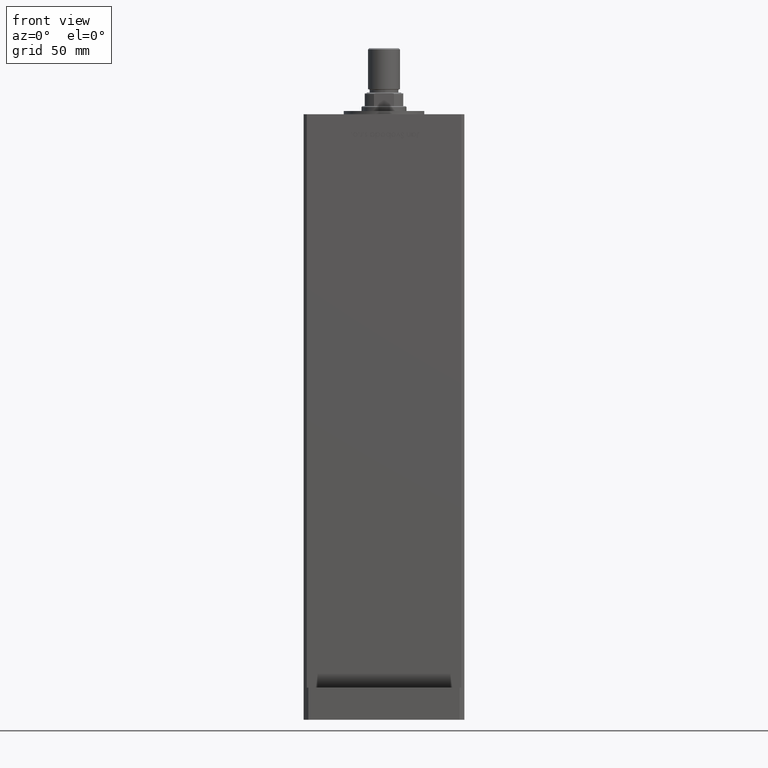
[diagram: clean part render]
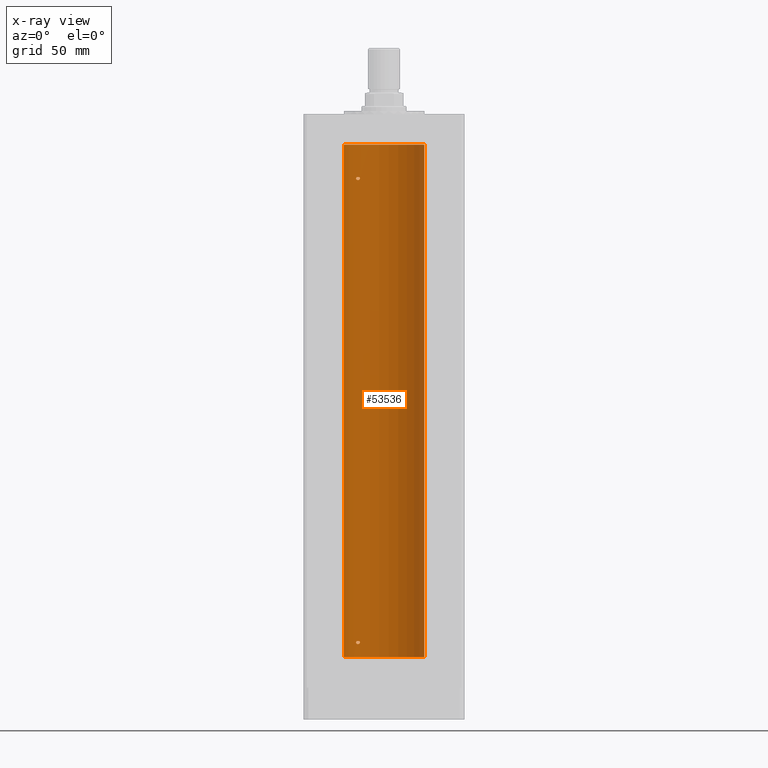
[diagram: x-ray — body ghosted, one internal face saturated and labeled with its STEP entity id]
A machine part, front view, then the same camera in x-ray: the body is ghosted and one INTERNAL B-rep face — a face not visible from any outside direction — is saturated and labeled: STEP entity #53536.
In plain terms, the highlighted cylindrical surface (partial cylindrical patch) has radius 25 mm, axis along (-0, -0, -1).
Its self-contained STEP definition (entity closure, byte-faithful):
#81 = CARTESIAN_POINT ( 'NONE',  ( -16.46913072925704924, 18.81168496547890001, 298.5057775588114737 ) ) ;
#293 = CARTESIAN_POINT ( 'NONE',  ( -17.15234217094416280, 18.18812579706686705, 296.8965730437749357 ) ) ;
#558 = CARTESIAN_POINT ( 'NONE',  ( -16.71492528194912452, 18.59135325782692405, 296.5801415583420635 ) ) ;
#749 = EDGE_CURVE ( 'NONE', #51034, #45775, #7089, .T. ) ;
#1718 = VECTOR ( 'NONE', #5287, 1000.000000000000000 ) ;
#1900 = CARTESIAN_POINT ( 'NONE',  ( -25.00000000000000000, 0.000000000000000000, 318.5000000000000000 ) ) ;
#2194 = CARTESIAN_POINT ( 'NONE',  ( -15.00000000000018829, 20.00000000000002487, 8.915947458602436981 ) ) ;
#2459 = CARTESIAN_POINT ( 'NONE',  ( -17.34935157289746854, 18.00000000000001066, 9.000000000000000000 ) ) ;
#3047 = CARTESIAN_POINT ( 'NONE',  ( -15.10490800566735814, 19.92096305044240978, 9.396293174044259899 ) ) ;
#3291 = CARTESIAN_POINT ( 'NONE',  ( 25.00000000000000000, 3.061616997868383043E-15, 0.000000000000000000 ) ) ;
#3367 = CARTESIAN_POINT ( 'NONE',  ( -15.95796937689563144, 19.24499537862564580, 298.4757730996522582 ) ) ;
#3645 = CARTESIAN_POINT ( 'NONE',  ( -17.34935157289746854, 18.00000000000000711, 297.5000000000000000 ) ) ;
#4162 = CARTESIAN_POINT ( 'NONE',  ( -15.70535969280555477, 19.45169171760801419, 298.3989607721125594 ) ) ;
#5287 = DIRECTION ( 'NONE',  ( -0.000000000000000000, -0.000000000000000000, -1.000000000000000000 ) ) ;
#6271 = CARTESIAN_POINT ( 'NONE',  ( -16.83415218046522455, 18.48332662461717391, 8.134317266281218650 ) ) ;
#7089 = CIRCLE ( 'NONE', #31575, 25.00000000000000000 ) ;
#7392 = CARTESIAN_POINT ( 'NONE',  ( -15.23594348686699895, 19.82115246225716376, 9.588721932685826843 ) ) ;
#7712 = CARTESIAN_POINT ( 'NONE',  ( -15.23594348686700073, 19.82115246225715666, 298.0887219326857576 ) ) ;
#7926 = CARTESIAN_POINT ( 'NONE',  ( -17.14593038898729560, 18.19399314418734548, 9.595944883196500186 ) ) ;
#9265 = CYLINDRICAL_SURFACE ( 'NONE', #36640, 25.00000000000000000 ) ;
#9713 = ORIENTED_EDGE ( 'NONE', *, *, #13241, .F. ) ;
#10016 = EDGE_CURVE ( 'NONE', #21654, #51034, #34573, .T. ) ;
#10643 = CARTESIAN_POINT ( 'NONE',  ( -15.06722189748649399, 19.94943357555938590, 8.675980324878873162 ) ) ;
#10921 = CARTESIAN_POINT ( 'NONE',  ( -15.01482636753733502, 19.98889854010116096, 8.831202661007701238 ) ) ;
#11476 = CARTESIAN_POINT ( 'NONE',  ( -16.34293146994560786, 18.91921593628401865, 7.997342590672627871 ) ) ;
#11522 = CARTESIAN_POINT ( 'NONE',  ( -14.99999999999999112, 20.00000000000001066, 9.000000000000000000 ) ) ;
#11792 = CARTESIAN_POINT ( 'NONE',  ( -17.19010376497221060, 18.15221652163110377, 9.535670123568005252 ) ) ;
#11909 = ORIENTED_EDGE ( 'NONE', *, *, #749, .F. ) ;
#12782 = DIRECTION ( 'NONE',  ( 1.000000000000000000, 0.000000000000000000, 0.000000000000000000 ) ) ;
#13241 = EDGE_CURVE ( 'NONE', #22353, #25021, #49611, .T. ) ;
#13921 = FACE_BOUND ( 'NONE', #18441, .T. ) ;
#14196 = CARTESIAN_POINT ( 'NONE',  ( -15.70664578139654921, 19.45064696206089394, 296.6005795994921641 ) ) ;
#14693 = ORIENTED_EDGE ( 'NONE', *, *, #40324, .F. ) ;
#14733 = CARTESIAN_POINT ( 'NONE',  ( -15.58164749401204574, 19.55082150006402131, 296.6566780726851675 ) ) ;
#14762 = CARTESIAN_POINT ( 'NONE',  ( -17.30269557861148044, 18.04515136187495727, 8.666042081755902515 ) ) ;
#15423 = ORIENTED_EDGE ( 'NONE', *, *, #46268, .T. ) ;
#15628 = CARTESIAN_POINT ( 'NONE',  ( -17.05007833789893112, 18.28384926940286093, 9.701373999012139038 ) ) ;
#15686 = CARTESIAN_POINT ( 'NONE',  ( -17.19010376497219283, 18.15221652163113220, 298.0356701235681385 ) ) ;
#15837 = EDGE_CURVE ( 'NONE', #30490, #32368, #26487, .T. ) ;
#16222 = CARTESIAN_POINT ( 'NONE',  ( -17.05007833789893468, 18.28384926940286803, 298.2013739990121053 ) ) ;
#16865 = CARTESIAN_POINT ( 'NONE',  ( -25.00000000000000000, 0.000000000000000000, 318.5000000000000000 ) ) ;
#16967 = CIRCLE ( 'NONE', #30941, 25.00000000000000000 ) ;
#16976 = CARTESIAN_POINT ( 'NONE',  ( -17.05249165747627771, 18.28208333366429272, 296.7922192200364861 ) ) ;
#18026 = CARTESIAN_POINT ( 'NONE',  ( -16.46844752485334240, 18.81003400474346421, 296.5115443190388760 ) ) ;
#18032 = DIRECTION ( 'NONE',  ( -0.000000000000000000, -0.000000000000000000, -1.000000000000000000 ) ) ;
#18104 = CARTESIAN_POINT ( 'NONE',  ( -17.34935157289746854, 18.00000000000001066, 9.000000000000000000 ) ) ;
#18176 = VECTOR ( 'NONE', #18032, 1000.000000000000000 ) ;
#18441 = EDGE_LOOP ( 'NONE', ( #9713, #14693 ) ) ;
#19715 = EDGE_LOOP ( 'NONE', ( #29777, #50688 ) ) ;
#20063 = CARTESIAN_POINT ( 'NONE',  ( -17.30163983552687057, 18.04615713653369369, 297.8360074727278857 ) ) ;
#20333 = CARTESIAN_POINT ( 'NONE',  ( -15.58230678163762306, 19.55030131031896445, 298.3437394867028729 ) ) ;
#20598 = CARTESIAN_POINT ( 'NONE',  ( -17.34935157289746854, 18.00000000000000711, 297.5000000000000000 ) ) ;
#20815 = CARTESIAN_POINT ( 'NONE',  ( -17.30163983552689899, 18.04615713653367592, 9.336007472727789747 ) ) ;
#21654 = VERTEX_POINT ( 'NONE', #28977 ) ;
#22353 = VERTEX_POINT ( 'NONE', #18104 ) ;
#22411 = CARTESIAN_POINT ( 'NONE',  ( -16.08757264251639185, 19.13682698743028610, 296.5034427658481491 ) ) ;
#22690 = CARTESIAN_POINT ( 'NONE',  ( -15.06722189748649576, 19.94943357555937880, 297.1759803248788216 ) ) ;
#22961 = DIRECTION ( 'NONE',  ( -0.000000000000000000, -0.000000000000000000, -1.000000000000000000 ) ) ;
#22968 = CARTESIAN_POINT ( 'NONE',  ( -15.01482636753733679, 19.98889854010114675, 297.3312026610076941 ) ) ;
#22994 = CARTESIAN_POINT ( 'NONE',  ( -15.23538646979299038, 19.82157806413531631, 8.411999895282743722 ) ) ;
#24076 = CARTESIAN_POINT ( 'NONE',  ( -15.70664578139656342, 19.45064696206088684, 8.100579599492093053 ) ) ;
#24716 = CARTESIAN_POINT ( 'NONE',  ( -15.01476641895662745, 19.98894406010706604, 297.6687945634013204 ) ) ;
#25021 = VERTEX_POINT ( 'NONE', #11522 ) ;
#26256 = FACE_OUTER_BOUND ( 'NONE', #44072, .T. ) ;
#26456 = B_SPLINE_CURVE_WITH_KNOTS ( 'NONE', 3,
 ( #41352, #37512, #50134, #53959, #3047, #7392, #45216, #33136, #28510, #41092, #29047, #44676, #36440, #32869, #15628, #7926, #11792, #20815, #32348, #49591 ),
 .UNSPECIFIED., .F., .F.,
 ( 4, 2, 2, 2, 2, 2, 2, 2, 2, 4 ),
 ( 0.004032696862986573372, 0.004284699222246939054, 0.004536701581507305604, 0.005040706300028038704, 0.005544711018548771804, 0.006048715737069505771, 0.007056725174110978910, 0.007308727533371345460, 0.007560729892631712010, 0.008064734611152450314 ),
 .UNSPECIFIED. ) ;
#26487 = B_SPLINE_CURVE_WITH_KNOTS ( 'NONE', 3,
 ( #3645, #50398, #37786, #293, #16976, #33679, #558, #18026, #52272, #22411, #51995, #14196, #14733, #47352, #31174, #42958, #22690, #22968, #51184, #34468 ),
 .UNSPECIFIED., .F., .F.,
 ( 4, 2, 2, 2, 2, 2, 2, 2, 2, 4 ),
 ( 0.000000000000000000, 0.0005040871078733063842, 0.001008174215746612768, 0.001512261323619919261, 0.002016348431493225537, 0.002520435539366532463, 0.003024522647239838522, 0.003528609755113144581, 0.003780653309049863530, 0.004032696862986582045 ),
 .UNSPECIFIED. ) ;
#27568 = EDGE_CURVE ( 'NONE', #21654, #47402, #16967, .T. ) ;
#28204 = CARTESIAN_POINT ( 'NONE',  ( -16.08757264251639896, 19.13682698743027544, 8.003442765848195251 ) ) ;
#28415 = ORIENTED_EDGE ( 'NONE', *, *, #27568, .T. ) ;
#28510 = CARTESIAN_POINT ( 'NONE',  ( -15.70535969280553346, 19.45169171760802840, 9.898960772112497253 ) ) ;
#28977 = CARTESIAN_POINT ( 'NONE',  ( 25.00000000000000000, 3.061616997868383043E-15, 318.5000000000000000 ) ) ;
#29047 = CARTESIAN_POINT ( 'NONE',  ( -16.08745393861402917, 19.13692152169249994, 9.996501509986932987 ) ) ;
#29777 = ORIENTED_EDGE ( 'NONE', *, *, #15837, .F. ) ;
#30490 = VERTEX_POINT ( 'NONE', #35957 ) ;
#30640 = DIRECTION ( 'NONE',  ( -1.000000000000000000, 0.000000000000000000, 0.000000000000000000 ) ) ;
#30941 = AXIS2_PLACEMENT_3D ( 'NONE', #46043, #33436, #33977 ) ;
#31174 = CARTESIAN_POINT ( 'NONE',  ( -15.23538646979298505, 19.82157806413532697, 296.9119998952827473 ) ) ;
#31482 = CARTESIAN_POINT ( 'NONE',  ( -15.10490010356606305, 19.92096840819820613, 8.603766671322505388 ) ) ;
#31575 = AXIS2_PLACEMENT_3D ( 'NONE', #41805, #33053, #12782 ) ;
#32036 = ORIENTED_EDGE ( 'NONE', *, *, #10016, .F. ) ;
#32301 = CARTESIAN_POINT ( 'NONE',  ( -17.05249165747629547, 18.28208333366428207, 8.292219220036512795 ) ) ;
#32348 = CARTESIAN_POINT ( 'NONE',  ( -17.34935157289747210, 18.00000000000001421, 9.170973690606336604 ) ) ;
#32368 = VERTEX_POINT ( 'NONE', #48205 ) ;
#32869 = CARTESIAN_POINT ( 'NONE',  ( -16.99843849356148695, 18.33190197607054372, 9.746833514575657276 ) ) ;
#32923 = CARTESIAN_POINT ( 'NONE',  ( -17.14593038898729915, 18.19399314418734903, 298.0959448831965233 ) ) ;
#33053 = DIRECTION ( 'NONE',  ( -0.000000000000000000, 0.000000000000000000, 1.000000000000000000 ) ) ;
#33136 = CARTESIAN_POINT ( 'NONE',  ( -15.58230678163760530, 19.55030131031898577, 9.843739486702938635 ) ) ;
#33436 = DIRECTION ( 'NONE',  ( -0.000000000000000000, 0.000000000000000000, 1.000000000000000000 ) ) ;
#33679 = CARTESIAN_POINT ( 'NONE',  ( -16.83415218046519968, 18.48332662461718456, 296.6343172662811867 ) ) ;
#33977 = DIRECTION ( 'NONE',  ( 1.000000000000000000, 0.000000000000000000, 0.000000000000000000 ) ) ;
#34468 = CARTESIAN_POINT ( 'NONE',  ( -15.00000000000000000, 20.00000000000000000, 297.5000000000000000 ) ) ;
#34573 = LINE ( 'NONE', #46916, #1718 ) ;
#35573 = CARTESIAN_POINT ( 'NONE',  ( -14.99999999999999112, 20.00000000000001066, 9.000000000000000000 ) ) ;
#35957 = CARTESIAN_POINT ( 'NONE',  ( -17.34935157289746854, 18.00000000000000711, 297.5000000000000000 ) ) ;
#36440 = CARTESIAN_POINT ( 'NONE',  ( -16.72476285461318568, 18.58415905903082788, 9.944944760795701555 ) ) ;
#36528 = CARTESIAN_POINT ( 'NONE',  ( -25.00000000000000000, 0.000000000000000000, 0.000000000000000000 ) ) ;
#36640 = AXIS2_PLACEMENT_3D ( 'NONE', #47602, #22961, #30640 ) ;
#36773 = CARTESIAN_POINT ( 'NONE',  ( -15.00000000000020428, 20.00000000000001421, 297.5840388036240824 ) ) ;
#37512 = CARTESIAN_POINT ( 'NONE',  ( -15.00000000000018829, 20.00000000000001776, 9.084038803624167713 ) ) ;
#37786 = CARTESIAN_POINT ( 'NONE',  ( -17.30269557861148044, 18.04515136187495727, 297.1660420817558474 ) ) ;
#39007 = EDGE_CURVE ( 'NONE', #32368, #30490, #50157, .T. ) ;
#39687 = CARTESIAN_POINT ( 'NONE',  ( -16.46844752485334240, 18.81003400474346776, 8.011544319038943485 ) ) ;
#40324 = EDGE_CURVE ( 'NONE', #25021, #22353, #26456, .T. ) ;
#40605 = CARTESIAN_POINT ( 'NONE',  ( -15.06763582406799529, 19.94912143246363456, 297.8250699387717759 ) ) ;
#40771 = CARTESIAN_POINT ( 'NONE',  ( -15.58164749401204219, 19.55082150006402841, 8.156678072685169312 ) ) ;
#41092 = CARTESIAN_POINT ( 'NONE',  ( -15.95796937689561013, 19.24499537862566712, 9.975773099652194276 ) ) ;
#41145 = CARTESIAN_POINT ( 'NONE',  ( -16.72476285461318923, 18.58415905903082432, 298.4449447607956927 ) ) ;
#41352 = CARTESIAN_POINT ( 'NONE',  ( -14.99999999999999112, 20.00000000000001066, 9.000000000000000000 ) ) ;
#41805 = CARTESIAN_POINT ( 'NONE',  ( 0.000000000000000000, 0.000000000000000000, 0.000000000000000000 ) ) ;
#42690 = FACE_BOUND ( 'NONE', #19715, .T. ) ;
#42958 = CARTESIAN_POINT ( 'NONE',  ( -15.10490010356605062, 19.92096840819819903, 297.1037666713225462 ) ) ;
#43799 = CARTESIAN_POINT ( 'NONE',  ( -16.71492528194912808, 18.59135325782692760, 8.080141558342090136 ) ) ;
#44072 = EDGE_LOOP ( 'NONE', ( #32036, #28415, #15423, #11909 ) ) ;
#44676 = CARTESIAN_POINT ( 'NONE',  ( -16.46913072925703148, 18.81168496547890712, 10.00577755881140618 ) ) ;
#44899 = CARTESIAN_POINT ( 'NONE',  ( -15.95808436639366334, 19.24489366819295100, 8.024260878849517553 ) ) ;
#45216 = CARTESIAN_POINT ( 'NONE',  ( -15.34624284195506583, 19.73614442075939479, 9.687618531851304837 ) ) ;
#45272 = CARTESIAN_POINT ( 'NONE',  ( -16.99843849356149406, 18.33190197607054372, 298.2468335145756555 ) ) ;
#45539 = CARTESIAN_POINT ( 'NONE',  ( -15.10490800566736702, 19.92096305044239557, 297.8962931740441604 ) ) ;
#45775 = VERTEX_POINT ( 'NONE', #36528 ) ;
#46043 = CARTESIAN_POINT ( 'NONE',  ( 0.000000000000000000, 0.000000000000000000, 318.5000000000000000 ) ) ;
#46268 = EDGE_CURVE ( 'NONE', #47402, #45775, #47887, .T. ) ;
#46916 = CARTESIAN_POINT ( 'NONE',  ( 25.00000000000000000, 3.061616997868383043E-15, 318.5000000000000000 ) ) ;
#47352 = CARTESIAN_POINT ( 'NONE',  ( -15.34666241858320213, 19.73581294411415499, 296.8121224605376938 ) ) ;
#47402 = VERTEX_POINT ( 'NONE', #16865 ) ;
#47602 = CARTESIAN_POINT ( 'NONE',  ( 0.000000000000000000, 0.000000000000000000, 318.5000000000000000 ) ) ;
#47887 = LINE ( 'NONE', #1900, #18176 ) ;
#48205 = CARTESIAN_POINT ( 'NONE',  ( -15.00000000000000000, 20.00000000000000000, 297.5000000000000000 ) ) ;
#48735 = CARTESIAN_POINT ( 'NONE',  ( -17.15234217094416636, 18.18812579706687771, 8.396573043775076073 ) ) ;
#49591 = CARTESIAN_POINT ( 'NONE',  ( -17.34935157289746854, 18.00000000000001066, 9.000000000000000000 ) ) ;
#49611 = B_SPLINE_CURVE_WITH_KNOTS ( 'NONE', 3,
 ( #2459, #53120, #14762, #48735, #32301, #6271, #43799, #39687, #11476, #28204, #44899, #24076, #40771, #52023, #22994, #31482, #10643, #10921, #2194, #35573 ),
 .UNSPECIFIED., .F., .F.,
 ( 4, 2, 2, 2, 2, 2, 2, 2, 2, 4 ),
 ( 0.000000000000000000, 0.0005040871078733219967, 0.001008174215746643993, 0.001512261323619965882, 0.002016348431493287987, 0.002520435539366610092, 0.003024522647239931764, 0.003528609755113253869, 0.003780653309049913837, 0.004032696862986573372 ),
 .UNSPECIFIED. ) ;
#49647 = CARTESIAN_POINT ( 'NONE',  ( -17.34935157289746499, 18.00000000000000355, 297.6709736906062744 ) ) ;
#50134 = CARTESIAN_POINT ( 'NONE',  ( -15.01476641895661679, 19.98894406010708380, 9.168794563401341691 ) ) ;
#50157 = B_SPLINE_CURVE_WITH_KNOTS ( 'NONE', 3,
 ( #54016, #36773, #24716, #40605, #45539, #7712, #53221, #20333, #4162, #3367, #53750, #81, #41145, #45272, #16222, #32923, #15686, #20063, #49647, #20598 ),
 .UNSPECIFIED., .F., .F.,
 ( 4, 2, 2, 2, 2, 2, 2, 2, 2, 4 ),
 ( 0.004032696862986582045, 0.004284699222247013647, 0.004536701581507444382, 0.005040706300028178349, 0.005544711018548911449, 0.006048715737069645416, 0.007056725174111107279, 0.007308727533371436533, 0.007560729892631764051, 0.008064734611152429497 ),
 .UNSPECIFIED. ) ;
#50398 = CARTESIAN_POINT ( 'NONE',  ( -17.34935157289747210, 18.00000000000001421, 297.3289983604259419 ) ) ;
#50688 = ORIENTED_EDGE ( 'NONE', *, *, #39007, .F. ) ;
#51034 = VERTEX_POINT ( 'NONE', #3291 ) ;
#51184 = CARTESIAN_POINT ( 'NONE',  ( -15.00000000000019362, 20.00000000000000355, 297.4159474586023748 ) ) ;
#51995 = CARTESIAN_POINT ( 'NONE',  ( -15.95808436639364913, 19.24489366819295810, 296.5242608788494749 ) ) ;
#52023 = CARTESIAN_POINT ( 'NONE',  ( -15.34666241858319680, 19.73581294411415143, 8.312122460537588964 ) ) ;
#52272 = CARTESIAN_POINT ( 'NONE',  ( -16.34293146994560431, 18.91921593628402931, 296.4973425906727016 ) ) ;
#53120 = CARTESIAN_POINT ( 'NONE',  ( -17.34935157289747210, 18.00000000000001421, 8.828998360425805103 ) ) ;
#53221 = CARTESIAN_POINT ( 'NONE',  ( -15.34624284195508714, 19.73614442075937703, 298.1876185318513421 ) ) ;
#53536 = ADVANCED_FACE ( 'NONE', ( #26256, #13921, #42690 ), #9265, .F. ) ;
#53750 = CARTESIAN_POINT ( 'NONE',  ( -16.08745393861405404, 19.13692152169249283, 298.4965015099868992 ) ) ;
#53959 = CARTESIAN_POINT ( 'NONE',  ( -15.06763582406798463, 19.94912143246364522, 9.325069938771754607 ) ) ;
#54016 = CARTESIAN_POINT ( 'NONE',  ( -15.00000000000000000, 20.00000000000000000, 297.5000000000000000 ) ) ;